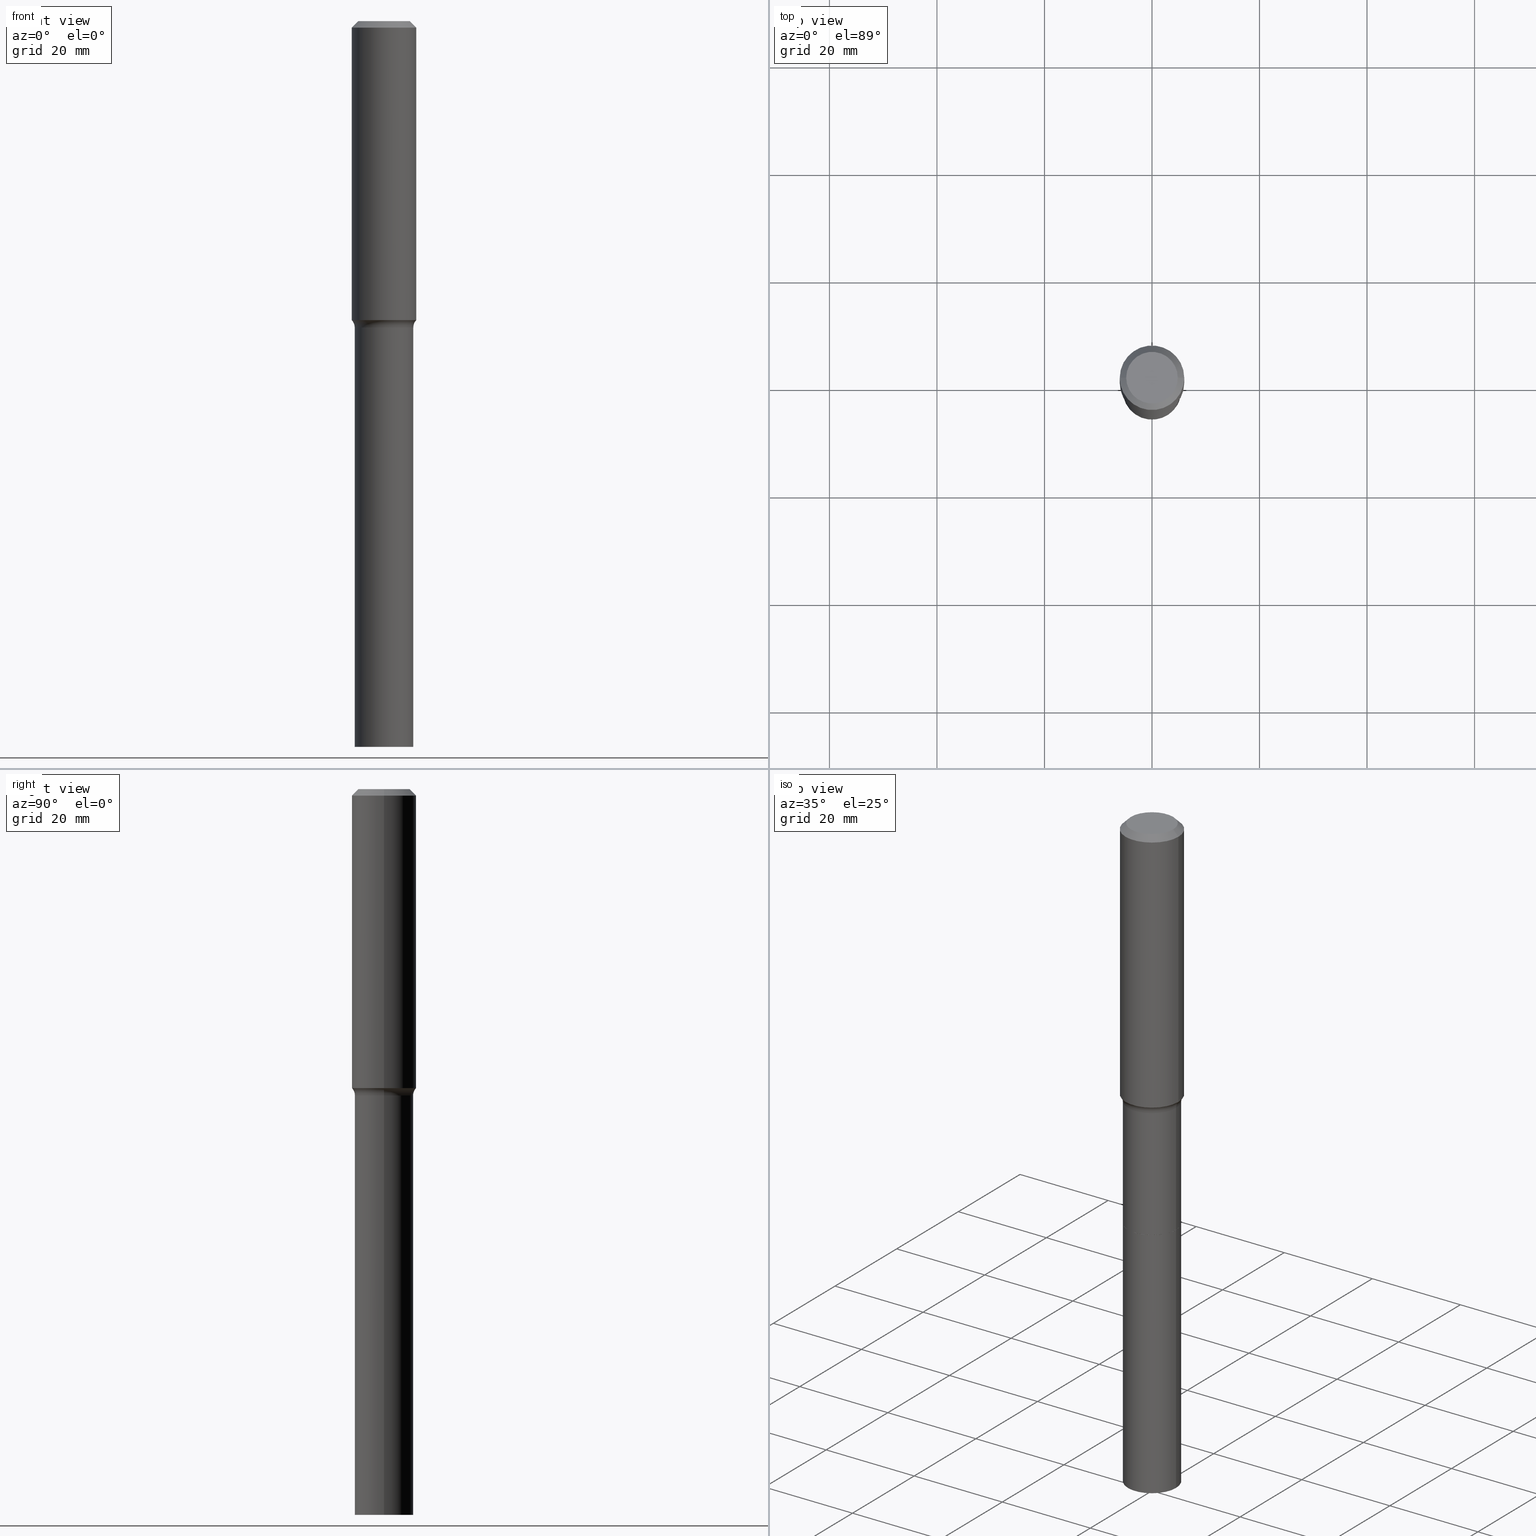
[diagram: canonical four-view strip — front | top / right | iso, engineering-drawing reading convention]
A machine part, canonical four-view strip (front | top / right | iso — engineering-drawing reading convention). The complete STEP part file that produces these views, byte-faithful:
ISO-10303-21;
HEADER;
FILE_DESCRIPTION (( 'STEP AP203' ),
    '1' );
FILE_NAME ('67897.STEP',
    '2025-04-01T15:32:16',
    ( '' ),
    ( '' ),
    'SwSTEP 2.0',
    'SolidWorks 2024',
    '' );
FILE_SCHEMA (( 'CONFIG_CONTROL_DESIGN' ));
ENDSEC;

DATA;
#1 = DIRECTION ( 'NONE',  ( 1.000000000000000000, -6.982962677686266711E-15, 0.000000000000000000 ) ) ;
#2 = DIRECTION ( 'NONE',  ( 1.000000000000000000, -6.982962677686264344E-15, 0.000000000000000000 ) ) ;
#3 = AXIS2_PLACEMENT_3D ( 'NONE', #148, #314, #106 ) ;
#4 = ORIENTED_EDGE ( 'NONE', *, *, #347, .T. ) ;
#5 = CIRCLE ( 'NONE', #112, 0.2362000000000002709 ) ;
#6 = CC_DESIGN_APPROVAL ( #470, ( #124 ) ) ;
#7 = EDGE_CURVE ( 'NONE', #387, #268, #246, .T. ) ;
#8 = DIRECTION ( 'NONE',  ( -2.445468806185136597E-29, 3.491481338843145583E-15, 1.000000000000000000 ) ) ;
#9 = DIRECTION ( 'NONE',  ( -1.000000000000000000, 7.105427357601001859E-15, 0.000000000000000000 ) ) ;
#10 = DIRECTION ( 'NONE',  ( 1.000000000000000000, -6.982962677686266711E-15, 4.876176775795936353E-29 ) ) ;
#11 = ORIENTED_EDGE ( 'NONE', *, *, #303, .T. ) ;
#12 = CIRCLE ( 'NONE', #315, 0.2145499999999999907 ) ;
#13 = PRODUCT_DEFINITION_SHAPE ( 'NONE', 'NONE',  #416 ) ;
#14 = CARTESIAN_POINT ( 'NONE',  ( 0.2145500000000003515, -2.005541795844891010E-14, -5.315000000000000391 ) ) ;
#15 = EDGE_CURVE ( 'NONE', #20, #279, #32, .T. ) ;
#16 = ORIENTED_EDGE ( 'NONE', *, *, #303, .F. ) ;
#17 = DIRECTION ( 'NONE',  ( -2.445468806185136597E-29, 3.491481338843145583E-15, 1.000000000000000000 ) ) ;
#18 = ORIENTED_EDGE ( 'NONE', *, *, #265, .F. ) ;
#19 = CARTESIAN_POINT ( 'NONE',  ( 0.000000000000000000, 0.000000000000000000, 0.000000000000000000 ) ) ;
#20 = VERTEX_POINT ( 'NONE', #240 ) ;
#21 = CLOSED_SHELL ( 'NONE', ( #308, #160, #59, #260 ) ) ;
#22 =( NAMED_UNIT ( * ) PLANE_ANGLE_UNIT ( ) SI_UNIT ( $, .RADIAN. ) );
#23 = EDGE_LOOP ( 'NONE', ( #373, #143, #237, #85 ) ) ;
#24 = CARTESIAN_POINT ( 'NONE',  ( 7.896418775171807488E-29, -1.127399324312451970E-14, -3.229000000000000981 ) ) ;
#25 = EDGE_CURVE ( 'NONE', #500, #95, #401, .T. ) ;
#26 = EDGE_LOOP ( 'NONE', ( #463, #153 ) ) ;
#27 = AXIS2_PLACEMENT_3D ( 'NONE', #293, #8, #36 ) ;
#28 = DIRECTION ( 'NONE',  ( -2.445468806185136597E-29, 3.491481338843145583E-15, 1.000000000000000000 ) ) ;
#29 = CARTESIAN_POINT ( 'NONE',  ( 1.299766670487400218E-28, -1.855722331595131973E-14, -5.315000000000000391 ) ) ;
#30 = EDGE_CURVE ( 'NONE', #350, #387, #501, .T. ) ;
#31 = LINE ( 'NONE', #351, #233 ) ;
#32 = LINE ( 'NONE', #109, #176 ) ;
#33 = DIRECTION ( 'NONE',  ( 1.000000000000000000, -6.982962677686261977E-15, 0.000000000000000000 ) ) ;
#34 = CIRCLE ( 'NONE', #339, 0.2145499999999999907 ) ;
#35 = VECTOR ( 'NONE', #191, 39.37007874015748143 ) ;
#36 = DIRECTION ( 'NONE',  ( 1.000000000000000000, -6.982962677686261977E-15, 0.000000000000000000 ) ) ;
#37 = PERSON_AND_ORGANIZATION ( #491, #242 ) ;
#38 = CARTESIAN_POINT ( 'NONE',  ( 7.895196040768714687E-29, -1.127224750245509741E-14, -3.228500000000000814 ) ) ;
#39 = PERSON_AND_ORGANIZATION ( #491, #242 ) ;
#40 = DIRECTION ( 'NONE',  ( -2.445468806185136597E-29, 3.491481338843145583E-15, 1.000000000000000000 ) ) ;
#41 = ADVANCED_FACE ( 'NONE', ( #235 ), #194, .T. ) ;
#42 = PERSON_AND_ORGANIZATION ( #491, #242 ) ;
#43 = DIRECTION ( 'NONE',  ( 1.000000000000000000, -6.982962677686264344E-15, 0.000000000000000000 ) ) ;
#44 = CIRCLE ( 'NONE', #97, 0.2360417038704663573 ) ;
#45 = LOCAL_TIME ( 11, 32, 16.00000000000000000, #205 ) ;
#46 = DIRECTION ( 'NONE',  ( 1.000000000000000000, -6.982962677686266711E-15, 0.000000000000000000 ) ) ;
#47 = DIRECTION ( 'NONE',  ( -2.445468806185136877E-29, 3.491481338843145188E-15, 1.000000000000000000 ) ) ;
#48 = ORIENTED_EDGE ( 'NONE', *, *, #357, .T. ) ;
#49 = LINE ( 'NONE', #425, #288 ) ;
#50 = VERTEX_POINT ( 'NONE', #323 ) ;
#51 = CIRCLE ( 'NONE', #178, 0.2140499999999999903 ) ;
#52 = CARTESIAN_POINT ( 'NONE',  ( 7.895196040768714687E-29, -1.127224750245509741E-14, -3.228500000000000814 ) ) ;
#53 = ORIENTED_EDGE ( 'NONE', *, *, #406, .F. ) ;
#54 = DIRECTION ( 'NONE',  ( 1.000000000000000000, -6.982962677686275388E-15, 0.000000000000000000 ) ) ;
#55 = ORIENTED_EDGE ( 'NONE', *, *, #83, .F. ) ;
#56 = EDGE_CURVE ( 'NONE', #50, #441, #296, .T. ) ;
#57 = CARTESIAN_POINT ( 'NONE',  ( -0.2145500000000003793, -1.339113883996461832E-14, -5.315000000000000391 ) ) ;
#58 = ORIENTED_EDGE ( 'NONE', *, *, #145, .F. ) ;
#59 = ADVANCED_FACE ( 'NONE', ( #475 ), #111, .T. ) ;
#60 = CONICAL_SURFACE ( 'NONE', #379, 0.2360417038704663573, 0.7504915783580670130 ) ;
#61 = CONICAL_SURFACE ( 'NONE', #493, 0.2360417038704663573, 0.7504915783580670130 ) ;
#62 = CARTESIAN_POINT ( 'NONE',  ( -4.713871149261273121E-47, 6.730158695841826722E-33, 1.927594061857931128E-18 ) ) ;
#63 = ORIENTED_EDGE ( 'NONE', *, *, #363, .F. ) ;
#64 = EDGE_CURVE ( 'NONE', #146, #497, #190, .T. ) ;
#65 = DIRECTION ( 'NONE',  ( 2.438088387897960049E-29, -3.491481338843145188E-15, -1.000000000000000000 ) ) ;
#66 = ORIENTED_EDGE ( 'NONE', *, *, #219, .T. ) ;
#67 = ADVANCED_FACE ( 'NONE', ( #163 ), #275, .F. ) ;
#68 = EDGE_LOOP ( 'NONE', ( #93, #318 ) ) ;
#69 = CIRCLE ( 'NONE', #281, 0.2145499999999998797 ) ;
#70 = DIRECTION ( 'NONE',  ( 0.000000000000000000, 0.000000000000000000, 1.000000000000000000 ) ) ;
#71 = ORIENTED_EDGE ( 'NONE', *, *, #120, .T. ) ;
#72 = APPLICATION_CONTEXT ( 'configuration controlled 3d designs of mechanical parts and assemblies' ) ;
#73 = LENGTH_MEASURE_WITH_UNIT ( LENGTH_MEASURE( 0.02539999999999999897 ), #394 );
#74 = VERTEX_POINT ( 'NONE', #84 ) ;
#75 = ADVANCED_FACE ( 'NONE', ( #77 ), #60, .T. ) ;
#76 = DATE_AND_TIME ( #442, #276 ) ;
#77 = FACE_OUTER_BOUND ( 'NONE', #23, .T. ) ;
#78 = APPROVAL_ROLE ( '' ) ;
#79 = DIRECTION ( 'NONE',  ( 1.000000000000000000, -6.982962677686269866E-15, 4.883557194083114022E-29 ) ) ;
#80 = APPROVAL_STATUS ( 'not_yet_approved' ) ;
#81 = DIRECTION ( 'NONE',  ( 1.000000000000000000, -6.982962677686266711E-15, 0.000000000000000000 ) ) ;
#82 = CALENDAR_DATE ( 2025, 1, 4 ) ;
#83 = EDGE_CURVE ( 'NONE', #279, #431, #231, .T. ) ;
#84 = CARTESIAN_POINT ( 'NONE',  ( -0.1889600000000000168, 1.401969416799070942E-15, 3.855188123706346622E-18 ) ) ;
#85 = ORIENTED_EDGE ( 'NONE', *, *, #319, .F. ) ;
#86 = DATE_AND_TIME ( #116, #45 ) ;
#87 = CARTESIAN_POINT ( 'NONE',  ( -0.2145499999999998797, -8.029096373836263825E-15, -2.244000000000000217 ) ) ;
#88 = TOROIDAL_SURFACE ( 'NONE', #214, 0.2945499999999999230, 0.08000000000000009881 ) ;
#89 = TOROIDAL_SURFACE ( 'NONE', #141, 0.2945499999999999230, 0.08000000000000009881 ) ;
#90 = DIRECTION ( 'NONE',  ( 0.7071067811864267805, -2.468850131080992517E-15, 0.7071067811866682540 ) ) ;
#91 = EDGE_LOOP ( 'NONE', ( #305, #302, #244, #229 ) ) ;
#92 = CARTESIAN_POINT ( 'NONE',  ( -0.2145499999999999907, -1.339113883996462306E-14, -3.229000000000000981 ) ) ;
#93 = ORIENTED_EDGE ( 'NONE', *, *, #56, .F. ) ;
#94 = DIRECTION ( 'NONE',  ( 1.000000000000000000, -6.982962677686264344E-15, 0.000000000000000000 ) ) ;
#95 = VERTEX_POINT ( 'NONE', #87 ) ;
#96 = AXIS2_PLACEMENT_3D ( 'NONE', #277, #512, #155 ) ;
#97 = AXIS2_PLACEMENT_3D ( 'NONE', #174, #177, #134 ) ;
#98 = EDGE_CURVE ( 'NONE', #74, #20, #149, .T. ) ;
#99 = CARTESIAN_POINT ( 'NONE',  ( 0.2360417038704663573, -9.292659769086573085E-15, -2.189440131195000472 ) ) ;
#100 = ORIENTED_EDGE ( 'NONE', *, *, #455, .T. ) ;
#101 = DIRECTION ( 'NONE',  ( -2.445468806185136597E-29, 3.491481338843145583E-15, 1.000000000000000000 ) ) ;
#102 = ORIENTED_EDGE ( 'NONE', *, *, #98, .T. ) ;
#103 = CARTESIAN_POINT ( 'NONE',  ( 1.155239464041865857E-30, -1.649375784469512352E-16, -0.04724000000000030258 ) ) ;
#104 = CARTESIAN_POINT ( 'NONE',  ( 7.896418775171807488E-29, -1.127399324312451970E-14, -3.229000000000000981 ) ) ;
#105 = CIRCLE ( 'NONE', #484, 0.1889600000000000168 ) ;
#106 = DIRECTION ( 'NONE',  ( 1.000000000000000000, -6.982962677686265922E-15, 4.876176775795935793E-29 ) ) ;
#107 = EDGE_CURVE ( 'NONE', #268, #378, #274, .T. ) ;
#108 = FACE_OUTER_BOUND ( 'NONE', #426, .T. ) ;
#109 = CARTESIAN_POINT ( 'NONE',  ( 0.2361999999999999933, -1.785387205520586782E-15, -0.04724000000000030258 ) ) ;
#110 = CARTESIAN_POINT ( 'NONE',  ( 7.896418775171807488E-29, -1.127399324312451970E-14, -3.229000000000000981 ) ) ;
#111 = CYLINDRICAL_SURFACE ( 'NONE', #396, 0.2145500000000001850 ) ;
#112 = AXIS2_PLACEMENT_3D ( 'NONE', #273, #353, #152 ) ;
#113 = LOCAL_TIME ( 11, 32, 16.00000000000000000, #212 ) ;
#114 = EDGE_CURVE ( 'NONE', #500, #146, #34, .T. ) ;
#115 = ORIENTED_EDGE ( 'NONE', *, *, #219, .F. ) ;
#116 = CALENDAR_DATE ( 2025, 1, 4 ) ;
#117 = CYLINDRICAL_SURFACE ( 'NONE', #380, 0.2145499999999999352 ) ;
#118 = DATE_TIME_ROLE ( 'creation_date' ) ;
#119 = CARTESIAN_POINT ( 'NONE',  ( 0.2145500000000001850, -1.277218788562211007E-14, -3.229000000000000981 ) ) ;
#120 = EDGE_CURVE ( 'NONE', #431, #279, #366, .T. ) ;
#121 = CALENDAR_DATE ( 2025, 1, 4 ) ;
#122 = AXIS2_PLACEMENT_3D ( 'NONE', #309, #464, #271 ) ;
#123 = DIRECTION ( 'NONE',  ( -2.445468806185136597E-29, 3.491481338843145583E-15, 1.000000000000000000 ) ) ;
#124 = SECURITY_CLASSIFICATION ( '', '', #479 ) ;
#125 = MANIFOLD_SOLID_BREP ( 'Body-Move/Copy2[2]', #140 ) ;
#126 = DATE_AND_TIME ( #198, #113 ) ;
#127 = LINE ( 'NONE', #119, #374 ) ;
#128 = CARTESIAN_POINT ( 'NONE',  ( 1.299766670487400218E-28, -1.855722331595131973E-14, -5.315000000000000391 ) ) ;
#129 = AXIS2_PLACEMENT_3D ( 'NONE', #104, #321, #469 ) ;
#130 = DIRECTION ( 'NONE',  ( -2.445468806185136597E-29, 3.491481338843145583E-15, 1.000000000000000000 ) ) ;
#131 = APPROVAL ( #290, 'UNSPECIFIED' ) ;
#132 = AXIS2_PLACEMENT_3D ( 'NONE', #430, #196, #236 ) ;
#133 = MANIFOLD_SOLID_BREP ( 'Body-Move/Copy2[1]', #21 ) ;
#134 = DIRECTION ( 'NONE',  ( 1.000000000000000000, -6.982962677686267499E-15, 0.000000000000000000 ) ) ;
#135 = ORIENTED_EDGE ( 'NONE', *, *, #30, .T. ) ;
#136 = DIRECTION ( 'NONE',  ( -2.445468806185136597E-29, 3.491481338843145583E-15, 1.000000000000000000 ) ) ;
#137 = ORIENTED_EDGE ( 'NONE', *, *, #257, .F. ) ;
#138 = FACE_OUTER_BOUND ( 'NONE', #516, .T. ) ;
#139 = ORIENTED_EDGE ( 'NONE', *, *, #15, .F. ) ;
#140 = CLOSED_SHELL ( 'NONE', ( #513, #498, #41, #75, #333, #422, #175, #239, #505, #376, #206, #473, #67, #226 ) ) ;
#141 = AXIS2_PLACEMENT_3D ( 'NONE', #410, #445, #79 ) ;
#142 = DIRECTION ( 'NONE',  ( -2.445468806185136597E-29, 3.491481338843145583E-15, 1.000000000000000000 ) ) ;
#143 = ORIENTED_EDGE ( 'NONE', *, *, #460, .T. ) ;
#144 = DIRECTION ( 'NONE',  ( 1.000000000000000000, -6.982962677686267499E-15, 0.000000000000000000 ) ) ;
#145 = EDGE_CURVE ( 'NONE', #387, #350, #358, .T. ) ;
#146 = VERTEX_POINT ( 'NONE', #518 ) ;
#147 = DIRECTION ( 'NONE',  ( -1.000000000000000000, 6.982962677686265922E-15, -4.876176775795935793E-29 ) ) ;
#148 = CARTESIAN_POINT ( 'NONE',  ( 7.896418775171807488E-29, -1.127399324312451970E-14, -3.229000000000000981 ) ) ;
#149 = CIRCLE ( 'NONE', #220, 0.1889600000000000168 ) ;
#150 = CIRCLE ( 'NONE', #251, 0.08000000000000009881 ) ;
#151 = CC_DESIGN_APPROVAL ( #195, ( #416 ) ) ;
#152 = DIRECTION ( 'NONE',  ( 1.000000000000000000, -6.982962677686269077E-15, 0.000000000000000000 ) ) ;
#153 = ORIENTED_EDGE ( 'NONE', *, *, #107, .T. ) ;
#154 = LINE ( 'NONE', #508, #35 ) ;
#155 = DIRECTION ( 'NONE',  ( 1.000000000000000000, -6.982962677686266711E-15, 4.876176775795936353E-29 ) ) ;
#156 = CC_DESIGN_PERSON_AND_ORGANIZATION_ASSIGNMENT ( #39, #208, ( #416 ) ) ;
#157 = CARTESIAN_POINT ( 'NONE',  ( -0.2140499999999999903, -9.753076517230024727E-15, -3.229000000000000981 ) ) ;
#158 = DIRECTION ( 'NONE',  ( -2.445468806185136597E-29, 3.491481338843145583E-15, 1.000000000000000000 ) ) ;
#159 = AXIS2_PLACEMENT_3D ( 'NONE', #103, #322, #471 ) ;
#160 = ADVANCED_FACE ( 'NONE', ( #209 ), #259, .T. ) ;
#161 = CONICAL_SURFACE ( 'NONE', #201, 0.2140499999999999903, 0.7853981633972775267 ) ;
#162 = SHAPE_DEFINITION_REPRESENTATION ( #13, #369 ) ;
#163 = FACE_OUTER_BOUND ( 'NONE', #68, .T. ) ;
#164 = PERSON_AND_ORGANIZATION ( #491, #242 ) ;
#165 = FACE_OUTER_BOUND ( 'NONE', #210, .T. ) ;
#166 = DATE_TIME_ROLE ( 'classification_date' ) ;
#167 = FACE_OUTER_BOUND ( 'NONE', #270, .T. ) ;
#168 = APPLICATION_PROTOCOL_DEFINITION ( 'international standard', 'config_control_design', 1994, #440 ) ;
#169 = AXIS2_PLACEMENT_3D ( 'NONE', #256, #412, #43 ) ;
#170 = AXIS2_PLACEMENT_3D ( 'NONE', #128, #204, #215 ) ;
#171 = CARTESIAN_POINT ( 'NONE',  ( 0.000000000000000000, 0.000000000000000000, 0.000000000000000000 ) ) ;
#172 = COORDINATED_UNIVERSAL_TIME_OFFSET ( 5, 0, .BEHIND. ) ;
#173 = DIRECTION ( 'NONE',  ( -2.445468806185136877E-29, 3.491481338843145188E-15, 1.000000000000000000 ) ) ;
#174 = CARTESIAN_POINT ( 'NONE',  ( 5.354207543847266757E-29, -7.644389360581631556E-15, -2.189440131195000472 ) ) ;
#175 = ADVANCED_FACE ( 'NONE', ( #370 ), #117, .T. ) ;
#176 = VECTOR ( 'NONE', #435, 39.37007874015748143 ) ;
#177 = DIRECTION ( 'NONE',  ( -2.445468806185136597E-29, 3.491481338843145583E-15, 1.000000000000000000 ) ) ;
#178 = AXIS2_PLACEMENT_3D ( 'NONE', #482, #123, #81 ) ;
#179 = ORIENTED_EDGE ( 'NONE', *, *, #393, .T. ) ;
#180 = FACE_OUTER_BOUND ( 'NONE', #433, .T. ) ;
#181 = EDGE_LOOP ( 'NONE', ( #402, #179, #55, #16 ) ) ;
#182 = DIRECTION ( 'NONE',  ( -2.445468806185136597E-29, 3.491481338843145583E-15, 1.000000000000000000 ) ) ;
#183 = ORIENTED_EDGE ( 'NONE', *, *, #107, .F. ) ;
#184 = CARTESIAN_POINT ( 'NONE',  ( 5.487632001079447088E-29, -7.834884124364020406E-15, -2.244000000000000217 ) ) ;
#185 = ORIENTED_EDGE ( 'NONE', *, *, #120, .F. ) ;
#186 = VECTOR ( 'NONE', #47, 39.37007874015748143 ) ;
#187 = APPROVAL_PERSON_ORGANIZATION ( #37, #195, #252 ) ;
#188 = ORIENTED_EDGE ( 'NONE', *, *, #265, .T. ) ;
#189 = DIRECTION ( 'NONE',  ( -0.7071067811864267805, 7.493145998869918709E-15, 0.7071067811866682540 ) ) ;
#190 = LINE ( 'NONE', #354, #414 ) ;
#191 = DIRECTION ( 'NONE',  ( -0.7071067811865452413, 2.468850131082233000E-15, -0.7071067811865497932 ) ) ;
#192 = ORIENTED_EDGE ( 'NONE', *, *, #245, .T. ) ;
#193 = CARTESIAN_POINT ( 'NONE',  ( -0.2145499999999999630, -8.029096373836262248E-15, -3.228500000000000814 ) ) ;
#194 = CYLINDRICAL_SURFACE ( 'NONE', #96, 0.2362000000000001321 ) ;
#195 = APPROVAL ( #485, 'UNSPECIFIED' ) ;
#196 = DIRECTION ( 'NONE',  ( -2.445468806185136597E-29, 3.491481338843145583E-15, 1.000000000000000000 ) ) ;
#197 = ORIENTED_EDGE ( 'NONE', *, *, #312, .F. ) ;
#198 = CALENDAR_DATE ( 2025, 1, 4 ) ;
#199 = DIRECTION ( 'NONE',  ( -2.445468806185136877E-29, 3.491481338843145188E-15, 1.000000000000000000 ) ) ;
#200 = AXIS2_PLACEMENT_3D ( 'NONE', #480, #287, #330 ) ;
#201 = AXIS2_PLACEMENT_3D ( 'NONE', #110, #28, #359 ) ;
#202 = DATE_AND_TIME ( #121, #224 ) ;
#203 = CC_DESIGN_PERSON_AND_ORGANIZATION_ASSIGNMENT ( #284, #329, ( #299 ) ) ;
#204 = DIRECTION ( 'NONE',  ( 2.438088387897960049E-29, -3.491481338843145188E-15, -1.000000000000000000 ) ) ;
#205 = COORDINATED_UNIVERSAL_TIME_OFFSET ( 5, 0, .BEHIND. ) ;
#206 = ADVANCED_FACE ( 'NONE', ( #167 ), #324, .T. ) ;
#207 = DIRECTION ( 'NONE',  ( 1.000000000000000000, -6.982962677686266711E-15, 4.876176775795936353E-29 ) ) ;
#208 = PERSON_AND_ORGANIZATION_ROLE ( 'creator' ) ;
#209 = FACE_OUTER_BOUND ( 'NONE', #428, .T. ) ;
#210 = EDGE_LOOP ( 'NONE', ( #466, #227, #4, #188 ) ) ;
#211 = CC_DESIGN_DATE_AND_TIME_ASSIGNMENT ( #202, #166, ( #124 ) ) ;
#212 = COORDINATED_UNIVERSAL_TIME_OFFSET ( 5, 0, .BEHIND. ) ;
#213 = VECTOR ( 'NONE', #511, 39.37007874015748143 ) ;
#214 = AXIS2_PLACEMENT_3D ( 'NONE', #263, #17, #381 ) ;
#215 = DIRECTION ( 'NONE',  ( -1.000000000000000000, 6.982962677686265922E-15, -4.876176775795935793E-29 ) ) ;
#216 = CARTESIAN_POINT ( 'NONE',  ( 0.2362000000000002709, -9.293172459752528663E-15, -2.189270379378770226 ) ) ;
#217 = CARTESIAN_POINT ( 'NONE',  ( 0.2361999999999999933, -1.814313362916447440E-15, -0.04724000000000030258 ) ) ;
#218 = VERTEX_POINT ( 'NONE', #285 ) ;
#219 = EDGE_CURVE ( 'NONE', #350, #378, #127, .T. ) ;
#220 = AXIS2_PLACEMENT_3D ( 'NONE', #368, #328, #449 ) ;
#221 = CARTESIAN_POINT ( 'NONE',  ( 0.2945499999999999230, -9.891715781076509274E-15, -2.244000000000000217 ) ) ;
#222 = VECTOR ( 'NONE', #269, 39.37007874015748143 ) ;
#223 = ORIENTED_EDGE ( 'NONE', *, *, #114, .F. ) ;
#224 = LOCAL_TIME ( 11, 32, 16.00000000000000000, #248 ) ;
#225 = CARTESIAN_POINT ( 'NONE',  ( -0.2362000000000001321, 1.678301941865357577E-15, -1.161852468318209457E-29 ) ) ;
#226 = ADVANCED_FACE ( 'NONE', ( #443 ), #389, .T. ) ;
#227 = ORIENTED_EDGE ( 'NONE', *, *, #409, .F. ) ;
#228 = CARTESIAN_POINT ( 'NONE',  ( 5.487632001079447088E-29, -7.834884124364020406E-15, -2.244000000000000217 ) ) ;
#229 = ORIENTED_EDGE ( 'NONE', *, *, #357, .F. ) ;
#230 = DIRECTION ( 'NONE',  ( 1.000000000000000000, -6.982962677686263555E-15, 0.000000000000000000 ) ) ;
#231 = CIRCLE ( 'NONE', #492, 0.2361999999999999933 ) ;
#232 = VERTEX_POINT ( 'NONE', #216 ) ;
#233 = VECTOR ( 'NONE', #506, 39.37007874015748143 ) ;
#234 = CC_DESIGN_APPROVAL ( #131, ( #517 ) ) ;
#235 = FACE_OUTER_BOUND ( 'NONE', #181, .T. ) ;
#236 = DIRECTION ( 'NONE',  ( 1.000000000000000000, -6.982962677686269077E-15, 0.000000000000000000 ) ) ;
#237 = ORIENTED_EDGE ( 'NONE', *, *, #467, .F. ) ;
#238 = APPLICATION_PROTOCOL_DEFINITION ( 'international standard', 'config_control_design', 1994, #72 ) ;
#239 = ADVANCED_FACE ( 'NONE', ( #165 ), #89, .F. ) ;
#240 = CARTESIAN_POINT ( 'NONE',  ( 0.1889600000000000168, -1.540873453589747738E-15, 3.855188123725863225E-18 ) ) ;
#241 = CIRCLE ( 'NONE', #122, 0.2360417038704663573 ) ;
#242 = ORGANIZATION ( 'UNSPECIFIED', 'UNSPECIFIED', '' ) ;
#243 = DIRECTION ( 'NONE',  ( 1.000000000000000000, 0.000000000000000000, 0.000000000000000000 ) ) ;
#244 = ORIENTED_EDGE ( 'NONE', *, *, #64, .T. ) ;
#245 = EDGE_CURVE ( 'NONE', #218, #95, #349, .T. ) ;
#246 = LINE ( 'NONE', #472, #213 ) ;
#247 = EDGE_CURVE ( 'NONE', #441, #50, #51, .T. ) ;
#248 = COORDINATED_UNIVERSAL_TIME_OFFSET ( 5, 0, .BEHIND. ) ;
#249 = DIRECTION ( 'NONE',  ( -2.445468806185136597E-29, 3.491481338843145583E-15, 1.000000000000000000 ) ) ;
#250 = AXIS2_PLACEMENT_3D ( 'NONE', #29, #158, #33 ) ;
#251 = AXIS2_PLACEMENT_3D ( 'NONE', #221, #266, #54 ) ;
#252 = APPROVAL_ROLE ( '' ) ;
#253 = CARTESIAN_POINT ( 'NONE',  ( -0.2945499999999999230, -5.741980496182645461E-15, -2.244000000000000217 ) ) ;
#254 = CARTESIAN_POINT ( 'NONE',  ( -9.427742298522546243E-47, 1.346031739168365344E-32, 3.855188123715862256E-18 ) ) ;
#255 = PRODUCT_RELATED_PRODUCT_CATEGORY ( 'detail', '', ( #299 ) ) ;
#256 = CARTESIAN_POINT ( 'NONE',  ( 7.896418775171807488E-29, -1.127399324312451970E-14, -3.229000000000000981 ) ) ;
#257 = EDGE_CURVE ( 'NONE', #20, #74, #105, .T. ) ;
#258 = CIRCLE ( 'NONE', #132, 0.2362000000000002709 ) ;
#259 = PLANE ( 'NONE',  #170 ) ;
#260 = ADVANCED_FACE ( 'NONE', ( #335 ), #486, .F. ) ;
#261 = CARTESIAN_POINT ( 'NONE',  ( 0.000000000000000000, 0.000000000000000000, 0.000000000000000000 ) ) ;
#262 = ORIENTED_EDGE ( 'NONE', *, *, #56, .T. ) ;
#263 = CARTESIAN_POINT ( 'NONE',  ( 5.487632001079447088E-29, -7.834884124364020406E-15, -2.244000000000000217 ) ) ;
#264 = ORIENTED_EDGE ( 'NONE', *, *, #7, .T. ) ;
#265 = EDGE_CURVE ( 'NONE', #497, #95, #438, .T. ) ;
#266 = DIRECTION ( 'NONE',  ( -6.982962677686266711E-15, -1.000000000000000000, 3.491481338843145583E-15 ) ) ;
#267 = CIRCLE ( 'NONE', #510, 0.2145499999999999907 ) ;
#268 = VERTEX_POINT ( 'NONE', #92 ) ;
#269 = DIRECTION ( 'NONE',  ( 0.6819983600628680698, -2.208861293266259574E-15, 0.7313537016188258466 ) ) ;
#270 = EDGE_LOOP ( 'NONE', ( #139, #450, #356, #71 ) ) ;
#271 = DIRECTION ( 'NONE',  ( 1.000000000000000000, -6.982962677686267499E-15, 0.000000000000000000 ) ) ;
#272 = ORIENTED_EDGE ( 'NONE', *, *, #363, .T. ) ;
#273 = CARTESIAN_POINT ( 'NONE',  ( 5.353792421075882419E-29, -7.643796675283030560E-15, -2.189270379378770226 ) ) ;
#274 = CIRCLE ( 'NONE', #169, 0.2145499999999999907 ) ;
#275 = PLANE ( 'NONE',  #3 ) ;
#276 = LOCAL_TIME ( 11, 32, 16.00000000000000000, #172 ) ;
#277 = CARTESIAN_POINT ( 'NONE',  ( 0.000000000000000000, 0.000000000000000000, 0.000000000000000000 ) ) ;
#278 = FACE_OUTER_BOUND ( 'NONE', #365, .T. ) ;
#279 = VERTEX_POINT ( 'NONE', #217 ) ;
#280 = ORIENTED_EDGE ( 'NONE', *, *, #347, .F. ) ;
#281 = AXIS2_PLACEMENT_3D ( 'NONE', #228, #101, #386 ) ;
#282 = LOCAL_TIME ( 11, 32, 16.00000000000000000, #294 ) ;
#283 = EDGE_LOOP ( 'NONE', ( #507, #424, #66, #183 ) ) ;
#284 = PERSON_AND_ORGANIZATION ( #491, #242 ) ;
#285 = CARTESIAN_POINT ( 'NONE',  ( -0.2360417038704663573, -5.967212180365666009E-15, -2.189440131195000472 ) ) ;
#286 = CC_DESIGN_PERSON_AND_ORGANIZATION_ASSIGNMENT ( #444, #405, ( #517 ) ) ;
#287 = DIRECTION ( 'NONE',  ( -2.445468806185136597E-29, 3.491481338843145583E-15, 1.000000000000000000 ) ) ;
#288 = VECTOR ( 'NONE', #494, 39.37007874015748143 ) ;
#289 =( GEOMETRIC_REPRESENTATION_CONTEXT ( 3 ) GLOBAL_UNCERTAINTY_ASSIGNED_CONTEXT ( ( #316 ) ) GLOBAL_UNIT_ASSIGNED_CONTEXT ( ( #439, #22, #355 ) ) REPRESENTATION_CONTEXT ( 'NONE', 'WORKASPACE' ) );
#290 = APPROVAL_STATUS ( 'not_yet_approved' ) ;
#291 = DIRECTION ( 'NONE',  ( 1.000000000000000000, -6.982962677686267499E-15, 0.000000000000000000 ) ) ;
#292 = PERSON_AND_ORGANIZATION ( #491, #242 ) ;
#293 = CARTESIAN_POINT ( 'NONE',  ( 1.299766670487400218E-28, -1.855722331595131973E-14, -5.315000000000000391 ) ) ;
#294 = COORDINATED_UNIVERSAL_TIME_OFFSET ( 5, 0, .BEHIND. ) ;
#295 = DIRECTION ( 'NONE',  ( -2.445468806185136597E-29, 3.491481338843145583E-15, 1.000000000000000000 ) ) ;
#296 = CIRCLE ( 'NONE', #129, 0.2140499999999999903 ) ;
#297 = AXIS2_PLACEMENT_3D ( 'NONE', #447, #375, #481 ) ;
#298 = APPROVAL_PERSON_ORGANIZATION ( #367, #131, #78 ) ;
#299 = PRODUCT ( '67897', '67897', '', ( #400 ) ) ;
#300 = CARTESIAN_POINT ( 'NONE',  ( 7.896418775171807488E-29, -1.127399324312451970E-14, -3.229000000000000981 ) ) ;
#301 = CYLINDRICAL_SURFACE ( 'NONE', #404, 0.2145500000000001850 ) ;
#302 = ORIENTED_EDGE ( 'NONE', *, *, #114, .T. ) ;
#303 = EDGE_CURVE ( 'NONE', #232, #279, #49, .T. ) ;
#304 = DIRECTION ( 'NONE',  ( 1.000000000000000000, -6.982962677686267499E-15, 0.000000000000000000 ) ) ;
#305 = ORIENTED_EDGE ( 'NONE', *, *, #25, .F. ) ;
#306 = AXIS2_PLACEMENT_3D ( 'NONE', #19, #496, #10 ) ;
#307 = ORIENTED_EDGE ( 'NONE', *, *, #257, .T. ) ;
#308 = ADVANCED_FACE ( 'NONE', ( #138 ), #301, .T. ) ;
#309 = CARTESIAN_POINT ( 'NONE',  ( 5.354207543847266757E-29, -7.644389360581631556E-15, -2.189440131195000472 ) ) ;
#310 = EDGE_LOOP ( 'NONE', ( #459, #192, #48, #280 ) ) ;
#311 = FACE_OUTER_BOUND ( 'NONE', #413, .T. ) ;
#312 = EDGE_CURVE ( 'NONE', #378, #268, #267, .T. ) ;
#313 = ORIENTED_EDGE ( 'NONE', *, *, #247, .T. ) ;
#314 = DIRECTION ( 'NONE',  ( -2.438088387897960049E-29, 3.491481338843145188E-15, 1.000000000000000000 ) ) ;
#315 = AXIS2_PLACEMENT_3D ( 'NONE', #52, #142, #454 ) ;
#316 = UNCERTAINTY_MEASURE_WITH_UNIT (LENGTH_MEASURE( 1.000000000000000082E-05 ), #439, 'distance_accuracy_value', 'NONE');
#317 = CARTESIAN_POINT ( 'NONE',  ( -0.2140499999999999903, -9.750427290055914315E-15, -3.229000000000000981 ) ) ;
#318 = ORIENTED_EDGE ( 'NONE', *, *, #247, .F. ) ;
#319 = EDGE_CURVE ( 'NONE', #384, #232, #462, .T. ) ;
#320 = FACE_OUTER_BOUND ( 'NONE', #382, .T. ) ;
#321 = DIRECTION ( 'NONE',  ( -2.445468806185136597E-29, 3.491481338843145583E-15, 1.000000000000000000 ) ) ;
#322 = DIRECTION ( 'NONE',  ( 2.445468806185136597E-29, -3.491481338843145583E-15, -1.000000000000000000 ) ) ;
#323 = CARTESIAN_POINT ( 'NONE',  ( 0.2140499999999999903, -1.276869640428326548E-14, -3.229000000000000981 ) ) ;
#324 = CONICAL_SURFACE ( 'NONE', #297, 0.2361999999999999933, 0.7853981633974450594 ) ;
#325 = CC_DESIGN_SECURITY_CLASSIFICATION ( #124, ( #517 ) ) ;
#326 = DATE_AND_TIME ( #82, #282 ) ;
#327 = CC_DESIGN_DATE_AND_TIME_ASSIGNMENT ( #326, #118, ( #416 ) ) ;
#328 = DIRECTION ( 'NONE',  ( -2.445468806185136597E-29, 3.491481338843145583E-15, 1.000000000000000000 ) ) ;
#329 = PERSON_AND_ORGANIZATION_ROLE ( 'design_owner' ) ;
#330 = DIRECTION ( 'NONE',  ( 1.000000000000000000, -6.982962677686266711E-15, 0.000000000000000000 ) ) ;
#331 = CC_DESIGN_PERSON_AND_ORGANIZATION_ASSIGNMENT ( #164, #371, ( #124 ) ) ;
#332 = DIRECTION ( 'NONE',  ( 7.105427357601001859E-15, 1.000000000000000000, -3.491481338843145583E-15 ) ) ;
#333 = ADVANCED_FACE ( 'NONE', ( #503 ), #88, .F. ) ;
#334 = VECTOR ( 'NONE', #90, 39.37007874015748143 ) ;
#335 = FACE_OUTER_BOUND ( 'NONE', #26, .T. ) ;
#336 = ORIENTED_EDGE ( 'NONE', *, *, #30, .F. ) ;
#337 = DIRECTION ( 'NONE',  ( -2.445468806185136597E-29, 3.491481338843145583E-15, 1.000000000000000000 ) ) ;
#338 = FACE_OUTER_BOUND ( 'NONE', #395, .T. ) ;
#339 = AXIS2_PLACEMENT_3D ( 'NONE', #38, #249, #2 ) ;
#340 = AXIS2_PLACEMENT_3D ( 'NONE', #62, #65, #147 ) ;
#341 = LINE ( 'NONE', #225, #186 ) ;
#342 = ORIENTED_EDGE ( 'NONE', *, *, #15, .T. ) ;
#343 = CYLINDRICAL_SURFACE ( 'NONE', #306, 0.2362000000000001321 ) ;
#344 = ORIENTED_EDGE ( 'NONE', *, *, #446, .F. ) ;
#345 = DIRECTION ( 'NONE',  ( -2.445468806185136597E-29, 3.491481338843145583E-15, 1.000000000000000000 ) ) ;
#346 = ORIENTED_EDGE ( 'NONE', *, *, #319, .T. ) ;
#347 = EDGE_CURVE ( 'NONE', #384, #497, #150, .T. ) ;
#348 = CARTESIAN_POINT ( 'NONE',  ( -0.2362000000000002709, -5.965494733417672588E-15, -2.189270379378770226 ) ) ;
#349 = CIRCLE ( 'NONE', #478, 0.08000000000000009881 ) ;
#350 = VERTEX_POINT ( 'NONE', #14 ) ;
#351 = CARTESIAN_POINT ( 'NONE',  ( -0.2360417038704663573, -5.967212180365666009E-15, -2.189440131195000472 ) ) ;
#352 = ORIENTED_EDGE ( 'NONE', *, *, #25, .T. ) ;
#353 = DIRECTION ( 'NONE',  ( -2.445468806185136597E-29, 3.491481338843145583E-15, 1.000000000000000000 ) ) ;
#354 = CARTESIAN_POINT ( 'NONE',  ( 0.2145499999999999352, -1.498194642497588005E-15, 1.046183727247017794E-29 ) ) ;
#355 =( NAMED_UNIT ( * ) SI_UNIT ( $, .STERADIAN. ) SOLID_ANGLE_UNIT ( ) );
#356 = ORIENTED_EDGE ( 'NONE', *, *, #446, .T. ) ;
#357 = EDGE_CURVE ( 'NONE', #95, #497, #69, .T. ) ;
#358 = CIRCLE ( 'NONE', #27, 0.2145500000000003515 ) ;
#359 = DIRECTION ( 'NONE',  ( 1.000000000000000000, -6.982962677686266711E-15, 0.000000000000000000 ) ) ;
#360 = ORIENTED_EDGE ( 'NONE', *, *, #385, .T. ) ;
#361 = LINE ( 'NONE', #157, #461 ) ;
#362 = VERTEX_POINT ( 'NONE', #348 ) ;
#363 = EDGE_CURVE ( 'NONE', #146, #500, #12, .T. ) ;
#364 = APPROVAL_DATE_TIME ( #126, #131 ) ;
#365 = EDGE_LOOP ( 'NONE', ( #262, #100, #63, #53 ) ) ;
#366 = CIRCLE ( 'NONE', #200, 0.2361999999999999933 ) ;
#367 = PERSON_AND_ORGANIZATION ( #491, #242 ) ;
#368 = CARTESIAN_POINT ( 'NONE',  ( -9.427742298522546243E-47, 1.346031739168365344E-32, 3.855188123715862256E-18 ) ) ;
#369 = ADVANCED_BREP_SHAPE_REPRESENTATION ( '67897', ( #133, #125, #399 ), #289 ) ;
#370 = FACE_OUTER_BOUND ( 'NONE', #91, .T. ) ;
#371 = PERSON_AND_ORGANIZATION_ROLE ( 'classification_officer' ) ;
#372 = DIRECTION ( 'NONE',  ( 1.000000000000000000, -6.982962677686266711E-15, 4.876185090822587894E-29 ) ) ;
#373 = ORIENTED_EDGE ( 'NONE', *, *, #409, .T. ) ;
#374 = VECTOR ( 'NONE', #173, 39.37007874015748143 ) ;
#375 = DIRECTION ( 'NONE',  ( 2.445468806185136597E-29, -3.491481338843145583E-15, -1.000000000000000000 ) ) ;
#376 = ADVANCED_FACE ( 'NONE', ( #180 ), #343, .T. ) ;
#377 = CARTESIAN_POINT ( 'NONE',  ( -0.2361999999999999933, -2.226065184999632371E-15, -0.04724000000000030258 ) ) ;
#378 = VERTEX_POINT ( 'NONE', #423 ) ;
#379 = AXIS2_PLACEMENT_3D ( 'NONE', #403, #337, #291 ) ;
#380 = AXIS2_PLACEMENT_3D ( 'NONE', #171, #295, #207 ) ;
#381 = DIRECTION ( 'NONE',  ( 1.000000000000000000, -6.982962677686269866E-15, 4.883557194083114022E-29 ) ) ;
#382 = EDGE_LOOP ( 'NONE', ( #102, #307 ) ) ;
#383 = LINE ( 'NONE', #388, #334 ) ;
#384 = VERTEX_POINT ( 'NONE', #427 ) ;
#385 = EDGE_CURVE ( 'NONE', #218, #384, #241, .T. ) ;
#386 = DIRECTION ( 'NONE',  ( 1.000000000000000000, -6.982962677686263555E-15, 0.000000000000000000 ) ) ;
#387 = VERTEX_POINT ( 'NONE', #57 ) ;
#388 = CARTESIAN_POINT ( 'NONE',  ( 0.2140499999999999903, -1.276869640428326548E-14, -3.229000000000000981 ) ) ;
#389 = CONICAL_SURFACE ( 'NONE', #453, 0.2140499999999999903, 0.7853981633972775267 ) ;
#390 = ORIENTED_EDGE ( 'NONE', *, *, #64, .F. ) ;
#391 = CC_DESIGN_PERSON_AND_ORGANIZATION_ASSIGNMENT ( #292, #448, ( #517 ) ) ;
#392 = ORIENTED_EDGE ( 'NONE', *, *, #488, .T. ) ;
#393 = EDGE_CURVE ( 'NONE', #362, #431, #341, .T. ) ;
#394 =( LENGTH_UNIT ( ) NAMED_UNIT ( * ) SI_UNIT ( $, .METRE. ) );
#395 = EDGE_LOOP ( 'NONE', ( #272, #352, #18, #390 ) ) ;
#396 = AXIS2_PLACEMENT_3D ( 'NONE', #24, #437, #477 ) ;
#397 = CARTESIAN_POINT ( 'NONE',  ( -0.2145499999999999352, 1.524469439573294488E-15, -1.055357523614189686E-29 ) ) ;
#398 = AXIS2_PLACEMENT_3D ( 'NONE', #261, #130, #417 ) ;
#399 = AXIS2_PLACEMENT_3D ( 'NONE', #436, #70, #243 ) ;
#400 = MECHANICAL_CONTEXT ( 'NONE', #72, 'mechanical' ) ;
#401 = LINE ( 'NONE', #397, #483 ) ;
#402 = ORIENTED_EDGE ( 'NONE', *, *, #467, .T. ) ;
#403 = CARTESIAN_POINT ( 'NONE',  ( 5.354207543847266757E-29, -7.644389360581631556E-15, -2.189440131195000472 ) ) ;
#404 = AXIS2_PLACEMENT_3D ( 'NONE', #456, #136, #304 ) ;
#405 = PERSON_AND_ORGANIZATION_ROLE ( 'creator' ) ;
#406 = EDGE_CURVE ( 'NONE', #50, #146, #383, .T. ) ;
#407 = DIRECTION ( 'NONE',  ( -2.445468806185136597E-29, 3.491481338843145583E-15, 1.000000000000000000 ) ) ;
#408 = APPROVAL_ROLE ( '' ) ;
#409 = EDGE_CURVE ( 'NONE', #384, #218, #44, .T. ) ;
#410 = CARTESIAN_POINT ( 'NONE',  ( 5.487632001079447088E-29, -7.834884124364020406E-15, -2.244000000000000217 ) ) ;
#411 = APPROVAL_DATE_TIME ( #76, #195 ) ;
#412 = DIRECTION ( 'NONE',  ( -2.445468806185136597E-29, 3.491481338843145583E-15, 1.000000000000000000 ) ) ;
#413 = EDGE_LOOP ( 'NONE', ( #137, #342, #465, #344 ) ) ;
#414 = VECTOR ( 'NONE', #199, 39.37007874015748143 ) ;
#415 = DIRECTION ( 'NONE',  ( -2.445468806185136597E-29, 3.491481338843145583E-15, 1.000000000000000000 ) ) ;
#416 = PRODUCT_DEFINITION ( 'UNKNOWN', '', #517, #487 ) ;
#417 = DIRECTION ( 'NONE',  ( 1.000000000000000000, -6.982962677686266711E-15, 4.876176775795936353E-29 ) ) ;
#418 = ORIENTED_EDGE ( 'NONE', *, *, #488, .F. ) ;
#419 = DIRECTION ( 'NONE',  ( 2.438088387897960049E-29, -3.491481338843145188E-15, -1.000000000000000000 ) ) ;
#420 = ORIENTED_EDGE ( 'NONE', *, *, #460, .F. ) ;
#421 = AXIS2_PLACEMENT_3D ( 'NONE', #184, #182, #230 ) ;
#422 = ADVANCED_FACE ( 'NONE', ( #338 ), #490, .T. ) ;
#423 = CARTESIAN_POINT ( 'NONE',  ( 0.2145499999999999907, -1.277218788562210849E-14, -3.229000000000000981 ) ) ;
#424 = ORIENTED_EDGE ( 'NONE', *, *, #145, .T. ) ;
#425 = CARTESIAN_POINT ( 'NONE',  ( 0.2362000000000001321, -1.649375784469497117E-15, 1.151752954443000789E-29 ) ) ;
#426 = EDGE_LOOP ( 'NONE', ( #420, #360, #346, #418 ) ) ;
#427 = CARTESIAN_POINT ( 'NONE',  ( 0.2360417038704663573, -9.292659769086573085E-15, -2.189440131195000472 ) ) ;
#428 = EDGE_LOOP ( 'NONE', ( #336, #58 ) ) ;
#429 = CONICAL_SURFACE ( 'NONE', #159, 0.2361999999999999933, 0.7853981633974450594 ) ;
#430 = CARTESIAN_POINT ( 'NONE',  ( 5.353792421075882419E-29, -7.643796675283030560E-15, -2.189270379378770226 ) ) ;
#431 = VERTEX_POINT ( 'NONE', #377 ) ;
#432 = PLANE ( 'NONE',  #340 ) ;
#433 = EDGE_LOOP ( 'NONE', ( #495, #392, #11, #185 ) ) ;
#434 = CARTESIAN_POINT ( 'NONE',  ( 5.354207543847266757E-29, -7.644389360581631556E-15, -2.189440131195000472 ) ) ;
#435 = DIRECTION ( 'NONE',  ( 0.7071067811865452413, -7.319954787623248157E-15, -0.7071067811865497932 ) ) ;
#436 = CARTESIAN_POINT ( 'NONE',  ( 0.000000000000000000, 0.000000000000000000, 0.000000000000000000 ) ) ;
#437 = DIRECTION ( 'NONE',  ( -2.445468806185136597E-29, 3.491481338843145583E-15, 1.000000000000000000 ) ) ;
#438 = CIRCLE ( 'NONE', #421, 0.2145499999999998797 ) ;
#439 =( CONVERSION_BASED_UNIT ( 'INCH', #73 ) LENGTH_UNIT ( ) NAMED_UNIT ( #451 ) );
#440 = APPLICATION_CONTEXT ( 'configuration controlled 3d designs of mechanical parts and assemblies' ) ;
#441 = VERTEX_POINT ( 'NONE', #317 ) ;
#442 = CALENDAR_DATE ( 2025, 1, 4 ) ;
#443 = FACE_OUTER_BOUND ( 'NONE', #504, .T. ) ;
#444 = PERSON_AND_ORGANIZATION ( #491, #242 ) ;
#445 = DIRECTION ( 'NONE',  ( -2.445468806185136597E-29, 3.491481338843145583E-15, 1.000000000000000000 ) ) ;
#446 = EDGE_CURVE ( 'NONE', #74, #431, #154, .T. ) ;
#447 = CARTESIAN_POINT ( 'NONE',  ( 1.155239464041865857E-30, -1.649375784469512352E-16, -0.04724000000000030258 ) ) ;
#448 = PERSON_AND_ORGANIZATION_ROLE ( 'design_supplier' ) ;
#449 = DIRECTION ( 'NONE',  ( 1.000000000000000000, -6.982962677686266711E-15, 4.876185090822587894E-29 ) ) ;
#450 = ORIENTED_EDGE ( 'NONE', *, *, #98, .F. ) ;
#451 = DIMENSIONAL_EXPONENTS ( 1.000000000000000000, 0.000000000000000000, 0.000000000000000000, 0.000000000000000000, 0.000000000000000000, 0.000000000000000000, 0.000000000000000000 ) ;
#452 = CARTESIAN_POINT ( 'NONE',  ( 7.896418775171807488E-29, -1.127399324312451970E-14, -3.229000000000000981 ) ) ;
#453 = AXIS2_PLACEMENT_3D ( 'NONE', #452, #415, #46 ) ;
#454 = DIRECTION ( 'NONE',  ( 1.000000000000000000, -6.982962677686264344E-15, 0.000000000000000000 ) ) ;
#455 = EDGE_CURVE ( 'NONE', #441, #500, #361, .T. ) ;
#456 = CARTESIAN_POINT ( 'NONE',  ( 7.896418775171807488E-29, -1.127399324312451970E-14, -3.229000000000000981 ) ) ;
#457 = ORIENTED_EDGE ( 'NONE', *, *, #406, .T. ) ;
#458 = CARTESIAN_POINT ( 'NONE',  ( 7.896418775171807488E-29, -1.127399324312451970E-14, -3.229000000000000981 ) ) ;
#459 = ORIENTED_EDGE ( 'NONE', *, *, #385, .F. ) ;
#460 = EDGE_CURVE ( 'NONE', #218, #362, #31, .T. ) ;
#461 = VECTOR ( 'NONE', #189, 39.37007874015748143 ) ;
#462 = LINE ( 'NONE', #99, #222 ) ;
#463 = ORIENTED_EDGE ( 'NONE', *, *, #312, .T. ) ;
#464 = DIRECTION ( 'NONE',  ( -2.445468806185136597E-29, 3.491481338843145583E-15, 1.000000000000000000 ) ) ;
#465 = ORIENTED_EDGE ( 'NONE', *, *, #83, .T. ) ;
#466 = ORIENTED_EDGE ( 'NONE', *, *, #245, .F. ) ;
#467 = EDGE_CURVE ( 'NONE', #232, #362, #5, .T. ) ;
#468 = AXIS2_PLACEMENT_3D ( 'NONE', #458, #419, #499 ) ;
#469 = DIRECTION ( 'NONE',  ( 1.000000000000000000, -6.982962677686266711E-15, 0.000000000000000000 ) ) ;
#470 = APPROVAL ( #80, 'UNSPECIFIED' ) ;
#471 = DIRECTION ( 'NONE',  ( -1.000000000000000000, 6.982962677686266711E-15, 0.000000000000000000 ) ) ;
#472 = CARTESIAN_POINT ( 'NONE',  ( -0.2145500000000001850, -9.749523803551223040E-15, -3.229000000000000981 ) ) ;
#473 = ADVANCED_FACE ( 'NONE', ( #320 ), #432, .F. ) ;
#474 = CARTESIAN_POINT ( 'NONE',  ( 0.2145499999999998797, -9.333078766861606044E-15, -2.244000000000000217 ) ) ;
#475 = FACE_OUTER_BOUND ( 'NONE', #283, .T. ) ;
#476 = DIRECTION ( 'NONE',  ( -2.445468806185136597E-29, 3.491481338843145583E-15, 1.000000000000000000 ) ) ;
#477 = DIRECTION ( 'NONE',  ( 1.000000000000000000, -6.982962677686267499E-15, 0.000000000000000000 ) ) ;
#478 = AXIS2_PLACEMENT_3D ( 'NONE', #253, #332, #9 ) ;
#479 = SECURITY_CLASSIFICATION_LEVEL ( 'unclassified' ) ;
#480 = CARTESIAN_POINT ( 'NONE',  ( 1.155239464041865857E-30, -1.649375784469512352E-16, -0.04724000000000030258 ) ) ;
#481 = DIRECTION ( 'NONE',  ( -1.000000000000000000, 6.982962677686266711E-15, 0.000000000000000000 ) ) ;
#482 = CARTESIAN_POINT ( 'NONE',  ( 7.896418775171807488E-29, -1.127399324312451970E-14, -3.229000000000000981 ) ) ;
#483 = VECTOR ( 'NONE', #514, 39.37007874015748143 ) ;
#484 = AXIS2_PLACEMENT_3D ( 'NONE', #254, #40, #372 ) ;
#485 = APPROVAL_STATUS ( 'not_yet_approved' ) ;
#486 = PLANE ( 'NONE',  #468 ) ;
#487 = DESIGN_CONTEXT ( 'detailed design', #440, 'design' ) ;
#488 = EDGE_CURVE ( 'NONE', #362, #232, #258, .T. ) ;
#489 = CARTESIAN_POINT ( 'NONE',  ( 1.155239464041865857E-30, -1.649375784469512352E-16, -0.04724000000000030258 ) ) ;
#490 = CYLINDRICAL_SURFACE ( 'NONE', #398, 0.2145499999999999352 ) ;
#491 = PERSON ( 'UNSPECIFIED', 'UNSPECIFIED', 'UNSPECIFIED', ('UNSPECIFIED'), ('UNSPECIFIED'), ('UNSPECIFIED') ) ;
#492 = AXIS2_PLACEMENT_3D ( 'NONE', #489, #407, #1 ) ;
#493 = AXIS2_PLACEMENT_3D ( 'NONE', #434, #476, #144 ) ;
#494 = DIRECTION ( 'NONE',  ( -2.445468806185136877E-29, 3.491481338843145188E-15, 1.000000000000000000 ) ) ;
#495 = ORIENTED_EDGE ( 'NONE', *, *, #393, .F. ) ;
#496 = DIRECTION ( 'NONE',  ( -2.445468806185136597E-29, 3.491481338843145583E-15, 1.000000000000000000 ) ) ;
#497 = VERTEX_POINT ( 'NONE', #474 ) ;
#498 = ADVANCED_FACE ( 'NONE', ( #311 ), #429, .T. ) ;
#499 = DIRECTION ( 'NONE',  ( -1.000000000000000000, 6.982962677686265922E-15, -4.876176775795935793E-29 ) ) ;
#500 = VERTEX_POINT ( 'NONE', #193 ) ;
#501 = CIRCLE ( 'NONE', #250, 0.2145500000000003515 ) ;
#502 = APPROVAL_PERSON_ORGANIZATION ( #42, #470, #408 ) ;
#503 = FACE_OUTER_BOUND ( 'NONE', #310, .T. ) ;
#504 = EDGE_LOOP ( 'NONE', ( #509, #313, #457, #223 ) ) ;
#505 = ADVANCED_FACE ( 'NONE', ( #108 ), #61, .T. ) ;
#506 = DIRECTION ( 'NONE',  ( -0.6819983600628680698, 7.399397606725709681E-15, 0.7313537016188258466 ) ) ;
#507 = ORIENTED_EDGE ( 'NONE', *, *, #7, .F. ) ;
#508 = CARTESIAN_POINT ( 'NONE',  ( -0.2361999999999999933, 1.484438206022545019E-15, -0.04724000000000030258 ) ) ;
#509 = ORIENTED_EDGE ( 'NONE', *, *, #455, .F. ) ;
#510 = AXIS2_PLACEMENT_3D ( 'NONE', #300, #345, #94 ) ;
#511 = DIRECTION ( 'NONE',  ( -2.445468806185136877E-29, 3.491481338843145188E-15, 1.000000000000000000 ) ) ;
#512 = DIRECTION ( 'NONE',  ( -2.445468806185136597E-29, 3.491481338843145583E-15, 1.000000000000000000 ) ) ;
#513 = ADVANCED_FACE ( 'NONE', ( #278 ), #161, .T. ) ;
#514 = DIRECTION ( 'NONE',  ( -2.445468806185136877E-29, 3.491481338843145188E-15, 1.000000000000000000 ) ) ;
#515 = APPROVAL_DATE_TIME ( #86, #470 ) ;
#516 = EDGE_LOOP ( 'NONE', ( #135, #264, #197, #115 ) ) ;
#517 = PRODUCT_DEFINITION_FORMATION_WITH_SPECIFIED_SOURCE ( 'ANY', '', #299, .NOT_KNOWN. ) ;
#518 = CARTESIAN_POINT ( 'NONE',  ( 0.2145499999999999907, -1.277044214495268620E-14, -3.228500000000000814 ) ) ;
ENDSEC;
END-ISO-10303-21;
